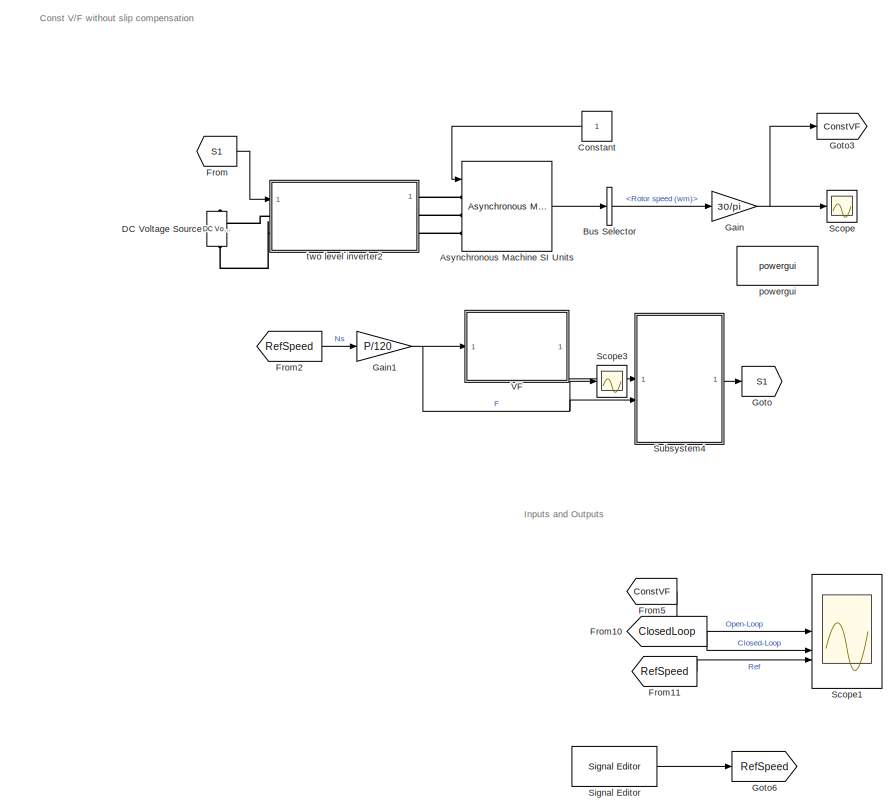
[diagram: root canvas - part 1/2, left side, full height]
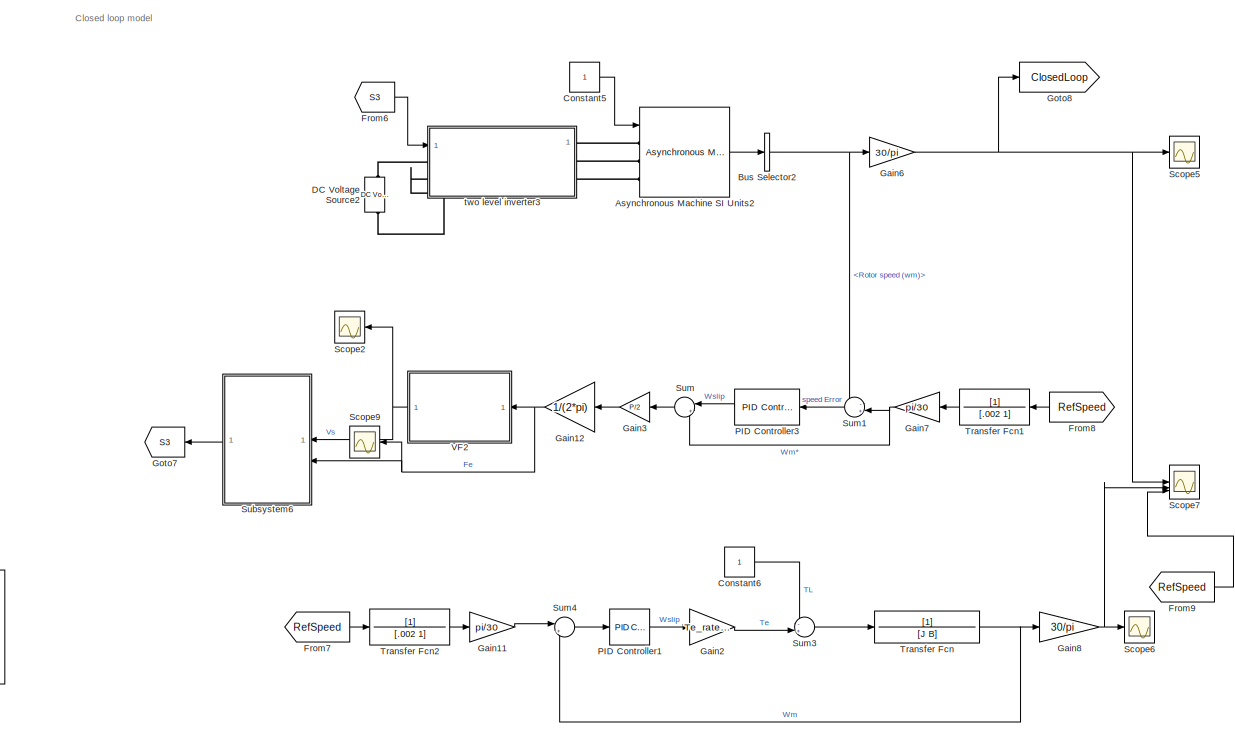
[diagram: root canvas - part 2/2, right side, full height]
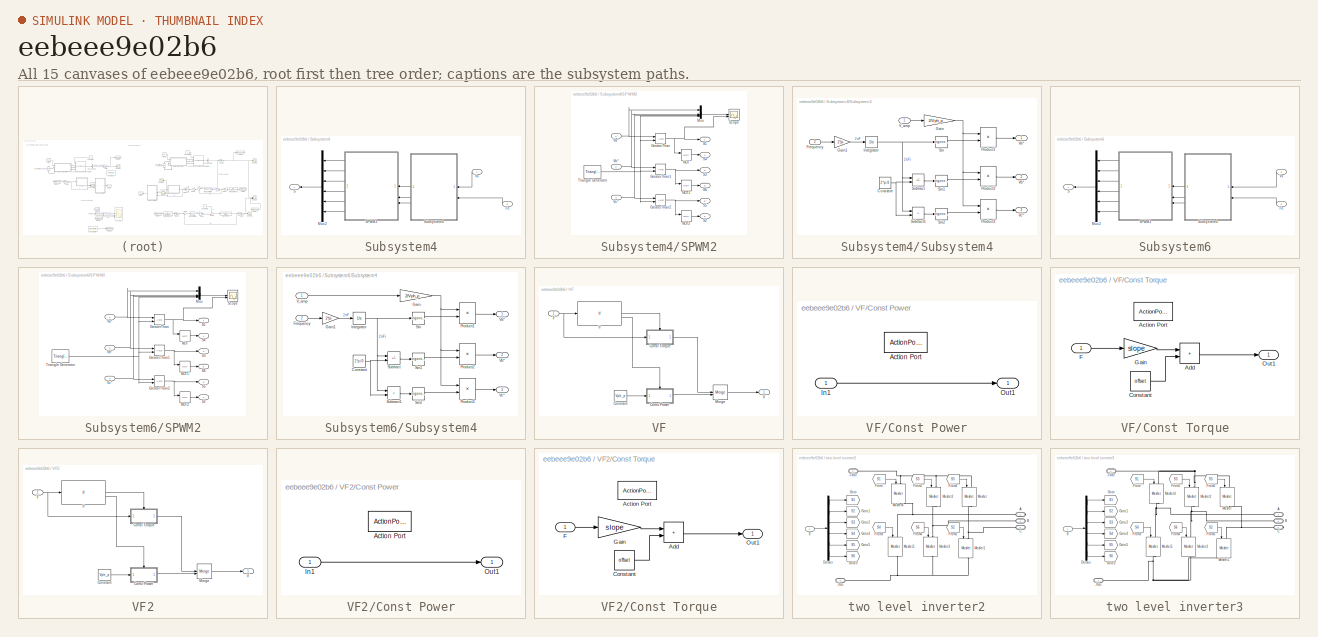
[diagram: thumbnail index - all 15 canvases of the model, root first then tree order]
MODEL slx_eebeee9e02b6
KIND model
CONFIG AbsTol = auto
CONFIG EnableMultiTasking = off
CONFIG FixedStep = auto
CONFIG MaxStep = .00001
CONFIG MinStep = auto
CONFIG RelTol = 1e-3
CONFIG SampleTimeConstraint = Unconstrained
CONFIG SolverName = VariableStepAuto
CONFIG StartTime = 0.0
CONFIG StopTime = 10.0
BLOCK [Reference] Asynchronous Machine SI Units  REF=spsAsynchronousMachineSIUnitsLib/Asynchronous Machine
SI Units
  SourceBlock = spsAsynchronousMachineSIUnitsLib/Asynchronous Machine\nSI Units
  SourceType = Asynchronous Machine
BLOCK [Reference] Asynchronous Machine SI Units2  REF=spsAsynchronousMachineSIUnitsLib/Asynchronous Machine
SI Units
  SourceBlock = spsAsynchronousMachineSIUnitsLib/Asynchronous Machine\nSI Units
  SourceType = Asynchronous Machine
BLOCK [BusSelector] Bus Selector
  OutputSignals = Mechanical.Rotor speed (wm)
BLOCK [BusSelector] Bus Selector2
  OutputSignals = Mechanical.Rotor speed (wm)
BLOCK [Constant] Constant
  NameLocation = top
BLOCK [Constant] Constant5
BLOCK [Constant] Constant6
BLOCK [Reference] DC Voltage Source  REF=spsDCVoltageSourceLib/DC Voltage Source
  LibrarySourceBlock = sps_lib/Sources/DC Voltage Source
  SourceBlock = spsDCVoltageSourceLib/DC Voltage Source
  SourceType = DC Voltage Source
BLOCK [Reference] DC Voltage Source2  REF=spsDCVoltageSourceLib/DC Voltage Source
  LibrarySourceBlock = sps_lib/Sources/DC Voltage Source
  SourceBlock = spsDCVoltageSourceLib/DC Voltage Source
  SourceType = DC Voltage Source
BLOCK [From] From
  GotoTag = S1
BLOCK [From] From10
  GotoTag = ClosedLoop
BLOCK [From] From11
  GotoTag = RefSpeed
BLOCK [From] From2
  GotoTag = RefSpeed
BLOCK [From] From5
  GotoTag = ConstVF
BLOCK [From] From6
  GotoTag = S3
BLOCK [From] From7
  GotoTag = RefSpeed
BLOCK [From] From8
  GotoTag = RefSpeed
  NameLocation = top
BLOCK [From] From9
  GotoTag = RefSpeed
BLOCK [Gain] Gain
  Gain = 30/pi
BLOCK [Gain] Gain1
  Gain = P/120
BLOCK [Gain] Gain11
  Gain = pi/30
BLOCK [Gain] Gain12
  Gain = 1/(2*pi)
  NameLocation = top
BLOCK [Gain] Gain2
  Gain = Te_rated/Wslip_rated
BLOCK [Gain] Gain3
  Gain = P/2
  NameLocation = top
BLOCK [Gain] Gain6
  Gain = 30/pi
BLOCK [Gain] Gain7
  Gain = pi/30
  NameLocation = top
BLOCK [Gain] Gain8
  Gain = 30/pi
BLOCK [Goto] Goto
  GotoTag = S1
BLOCK [Goto] Goto3
  GotoTag = ConstVF
BLOCK [Goto] Goto6
  GotoTag = RefSpeed
BLOCK [Goto] Goto7
  GotoTag = S3
  NameLocation = top
BLOCK [Goto] Goto8
  GotoTag = ClosedLoop
BLOCK [Reference] PID Controller1  REF=slpidlib/PID Controller
  LibrarySourceBlock = simulink/Continuous/PID Controller
  SourceBlock = slpidlib/PID Controller
  SourceType = PID 1dof
BLOCK [Reference] PID Controller3  REF=slpidlib/PID Controller
  LibrarySourceBlock = simulink/Continuous/PID Controller
  NameLocation = top
  SourceBlock = slpidlib/PID Controller
  SourceType = PID 1dof
BLOCK [Scope] Scope
  Floating = off
  NumInputPorts = 1
  ScopeSpecificationString = Simulink.scopes.TimeScopeBlockCfg('CurrentConfiguration', extmgr.ConfigurationSet(extmgr.Configuration('Core','General UI',true),extmgr.Configuration('Core','Source UI',true),extmgr.Configuration('Sources','WiredSimulink',true),extmgr.Configuration('Visuals','Time Domain',true,'SerializedDisplays',{struct('MinYLimReal','-70.06421','MaxYLimReal','611.54364','YLabelReal','','MinYLimMag','0.00000','M...<+1496ch>
BLOCK [Scope] Scope1
  Floating = off
  NumInputPorts = 3
  ScopeSpecificationString = Simulink.scopes.TimeScopeBlockCfg('CurrentConfiguration', extmgr.ConfigurationSet(extmgr.Configuration('Core','General UI',true,'FigureColor',[0 0 0]),extmgr.Configuration('Core','Source UI',true),extmgr.Configuration('Sources','WiredSimulink',true,'DataLoggingVariableName','ScopeData6'),extmgr.Configuration('Visuals','Time Domain',true,'SerializedDisplays',{struct('MinYLimReal','-70.77657','MaxYL...<+1720ch>
BLOCK [Scope] Scope2
  Floating = off
  NameLocation = top
  NumInputPorts = 1
  ScopeSpecificationString = Simulink.scopes.TimeScopeBlockCfg('CurrentConfiguration', extmgr.ConfigurationSet(extmgr.Configuration('Core','General UI',true),extmgr.Configuration('Core','Source UI',true),extmgr.Configuration('Sources','WiredSimulink',true,'DataLoggingVariableName','ScopeData2'),extmgr.Configuration('Visuals','Time Domain',true,'SerializedDisplays',{struct('MinYLimReal','-43.36773','MaxYLimReal','422.13911','Y...<+1415ch>
BLOCK [Scope] Scope3
  Floating = off
  NumInputPorts = 1
  ScopeSpecificationString = Simulink.scopes.TimeScopeBlockCfg('CurrentConfiguration', extmgr.ConfigurationSet(extmgr.Configuration('Core','General UI',true),extmgr.Configuration('Core','Source UI',true),extmgr.Configuration('Sources','WiredSimulink',true,'DataLoggingVariableName','ScopeData1'),extmgr.Configuration('Visuals','Time Domain',true),extmgr.Configuration('Tools','Plot Navigation',true),extmgr.Configuration('Tools',...<+40ch>
BLOCK [Scope] Scope5
  Floating = off
  NumInputPorts = 1
  ScopeSpecificationString = Simulink.scopes.TimeScopeBlockCfg('CurrentConfiguration', extmgr.ConfigurationSet(extmgr.Configuration('Core','General UI',true),extmgr.Configuration('Core','Source UI',true),extmgr.Configuration('Sources','WiredSimulink',true,'DataLoggingVariableName','ScopeData3'),extmgr.Configuration('Visuals','Time Domain',true,'SerializedDisplays',{struct('MinYLimReal','-68.59121','MaxYLimReal','592.36557','Y...<+1536ch>
BLOCK [Scope] Scope6
  Floating = off
  NumInputPorts = 1
  ScopeSpecificationString = Simulink.scopes.TimeScopeBlockCfg('CurrentConfiguration', extmgr.ConfigurationSet(extmgr.Configuration('Core','General UI',true),extmgr.Configuration('Core','Source UI',true),extmgr.Configuration('Sources','WiredSimulink',true,'DataLoggingVariableName','ScopeData4'),extmgr.Configuration('Visuals','Time Domain',true,'SerializedDisplays',{struct('MinYLimReal','-12.99398','MaxYLimReal','116.94578','Y...<+1418ch>
BLOCK [Scope] Scope7
  Floating = off
  NumInputPorts = 3
  ScopeSpecificationString = Simulink.scopes.TimeScopeBlockCfg('CurrentConfiguration', extmgr.ConfigurationSet(extmgr.Configuration('Core','General UI',true),extmgr.Configuration('Core','Source UI',true),extmgr.Configuration('Sources','WiredSimulink',true,'DataLoggingVariableName','ScopeData5'),extmgr.Configuration('Visuals','Time Domain',true,'SerializedDisplays',{struct('MinYLimReal','-68.59121','MaxYLimReal','592.36557','Y...<+1557ch>
BLOCK [Scope] Scope9
  Floating = off
  NameLocation = top
  NumInputPorts = 1
  ScopeSpecificationString = Simulink.scopes.TimeScopeBlockCfg('CurrentConfiguration', extmgr.ConfigurationSet(extmgr.Configuration('Core','General UI',true),extmgr.Configuration('Core','Source UI',true),extmgr.Configuration('Sources','WiredSimulink',true,'DataLoggingVariableName','ScopeData7'),extmgr.Configuration('Visuals','Time Domain',true,'SerializedDisplays',{struct('MinYLimReal','1.04954','MaxYLimReal','1.74026','YLabe...<+1402ch>
BLOCK [Reference] Signal Editor  REF=SignalEditorBlockLib/Signal Editor
  LibrarySourceBlock = simulink/Sources/Signal Editor
  SourceBlock = SignalEditorBlockLib/Signal Editor
  SourceType = SignalEditor
  UserDataPersistent = on
BLOCK [SubSystem] Subsystem4
BLOCK [Inport] Subsystem4/Fe
  Port = 2
BLOCK [Mux] Subsystem4/Mux2
  DisplayOption = bar
  Inputs = 6
  NameLocation = top
BLOCK [Outport] Subsystem4/S
BLOCK [SubSystem] Subsystem4/SPWM2
BLOCK [RelationalOperator] Subsystem4/SPWM2/GreaterThan
  InputSameDT = off
  OutDataTypeStr = boolean
  RndMeth = Simplest
BLOCK [RelationalOperator] Subsystem4/SPWM2/GreaterThan1
  InputSameDT = off
  OutDataTypeStr = boolean
  RndMeth = Simplest
BLOCK [RelationalOperator] Subsystem4/SPWM2/GreaterThan2
  InputSameDT = off
  OutDataTypeStr = boolean
  RndMeth = Simplest
BLOCK [Mux] Subsystem4/SPWM2/Mux
  DisplayOption = bar
BLOCK [Logic] Subsystem4/SPWM2/NOT
  AllPortsSameDT = off
  IconShape = distinctive
  Operator = NOT
  OutDataTypeStr = boolean
BLOCK [Logic] Subsystem4/SPWM2/NOT1
  AllPortsSameDT = off
  IconShape = distinctive
  Operator = NOT
  OutDataTypeStr = boolean
BLOCK [Logic] Subsystem4/SPWM2/NOT2
  AllPortsSameDT = off
  IconShape = distinctive
  Operator = NOT
  OutDataTypeStr = boolean
BLOCK [Outport] Subsystem4/SPWM2/S1
BLOCK [Outport] Subsystem4/SPWM2/S2
  Port = 2
BLOCK [Outport] Subsystem4/SPWM2/S3
  Port = 3
BLOCK [Outport] Subsystem4/SPWM2/S4
  Port = 4
BLOCK [Outport] Subsystem4/SPWM2/S5
  Port = 5
BLOCK [Outport] Subsystem4/SPWM2/S6
  Port = 6
BLOCK [Scope] Subsystem4/SPWM2/Scope
  Floating = off
  NumInputPorts = 2
  ScopeSpecificationString = Simulink.scopes.TimeScopeBlockCfg('CurrentConfiguration', extmgr.ConfigurationSet(extmgr.Configuration('Core','General UI',true),extmgr.Configuration('Core','Source UI',true),extmgr.Configuration('Sources','WiredSimulink',true,'DataLoggingVariableName','ScopeData1'),extmgr.Configuration('Visuals','Time Domain',true,'SerializedDisplays',{struct('MinYLimReal','-1.25','MaxYLimReal','1.25','YLabelReal...<+2092ch>
BLOCK [Reference] Subsystem4/SPWM2/Triangle Generator  REF=spsTriangleGeneratorLib/Triangle
Generator
  LibrarySourceBlock = sps_lib/Sources/Signal Generator Sources/Triangle\nGenerator
  SourceBlock = spsTriangleGeneratorLib/Triangle\nGenerator
  SourceType = Triangle Generator
BLOCK [Inport] Subsystem4/SPWM2/Va*
BLOCK [Inport] Subsystem4/SPWM2/Vb*
  Port = 2
BLOCK [Inport] Subsystem4/SPWM2/Vc*
  Port = 3
BLOCK [SubSystem] Subsystem4/Subsystem4
  NameLocation = top
BLOCK [Constant] Subsystem4/Subsystem4/Constant
  Value = 2*pi/3
BLOCK [Inport] Subsystem4/Subsystem4/Frequency
  Port = 2
BLOCK [Gain] Subsystem4/Subsystem4/Gain
  Gain = 2/Vph_p
BLOCK [Gain] Subsystem4/Subsystem4/Gain1
  Gain = 2*pi
BLOCK [Integrator] Subsystem4/Subsystem4/Integrator
BLOCK [Product] Subsystem4/Subsystem4/Product1
BLOCK [Product] Subsystem4/Subsystem4/Product2
BLOCK [Product] Subsystem4/Subsystem4/Product3
BLOCK [Trigonometry] Subsystem4/Subsystem4/Sin
BLOCK [Trigonometry] Subsystem4/Subsystem4/Sin1
BLOCK [Trigonometry] Subsystem4/Subsystem4/Sin2
BLOCK [Sum] Subsystem4/Subsystem4/Subtract
  IconShape = rectangular
  Inputs = +-
BLOCK [Sum] Subsystem4/Subsystem4/Subtract1
  IconShape = rectangular
BLOCK [Inport] Subsystem4/Subsystem4/V_amp
BLOCK [Outport] Subsystem4/Subsystem4/Va*
BLOCK [Outport] Subsystem4/Subsystem4/Vb*
  Port = 2
BLOCK [Outport] Subsystem4/Subsystem4/Vc*
  Port = 3
BLOCK [Inport] Subsystem4/Vs
BLOCK [SubSystem] Subsystem6
  NameLocation = top
BLOCK [Inport] Subsystem6/Fe
  Port = 2
BLOCK [Mux] Subsystem6/Mux2
  DisplayOption = bar
  Inputs = 6
  NameLocation = top
BLOCK [Outport] Subsystem6/S
BLOCK [SubSystem] Subsystem6/SPWM2
BLOCK [RelationalOperator] Subsystem6/SPWM2/GreaterThan
  InputSameDT = off
  OutDataTypeStr = boolean
  RndMeth = Simplest
BLOCK [RelationalOperator] Subsystem6/SPWM2/GreaterThan1
  InputSameDT = off
  OutDataTypeStr = boolean
  RndMeth = Simplest
BLOCK [RelationalOperator] Subsystem6/SPWM2/GreaterThan2
  InputSameDT = off
  OutDataTypeStr = boolean
  RndMeth = Simplest
BLOCK [Mux] Subsystem6/SPWM2/Mux
  DisplayOption = bar
BLOCK [Logic] Subsystem6/SPWM2/NOT
  AllPortsSameDT = off
  IconShape = distinctive
  Operator = NOT
  OutDataTypeStr = boolean
BLOCK [Logic] Subsystem6/SPWM2/NOT1
  AllPortsSameDT = off
  IconShape = distinctive
  Operator = NOT
  OutDataTypeStr = boolean
BLOCK [Logic] Subsystem6/SPWM2/NOT2
  AllPortsSameDT = off
  IconShape = distinctive
  Operator = NOT
  OutDataTypeStr = boolean
BLOCK [Outport] Subsystem6/SPWM2/S1
BLOCK [Outport] Subsystem6/SPWM2/S2
  Port = 2
BLOCK [Outport] Subsystem6/SPWM2/S3
  Port = 3
BLOCK [Outport] Subsystem6/SPWM2/S4
  Port = 4
BLOCK [Outport] Subsystem6/SPWM2/S5
  Port = 5
BLOCK [Outport] Subsystem6/SPWM2/S6
  Port = 6
BLOCK [Scope] Subsystem6/SPWM2/Scope
  Floating = off
  NumInputPorts = 2
  ScopeSpecificationString = Simulink.scopes.TimeScopeBlockCfg('CurrentConfiguration', extmgr.ConfigurationSet(extmgr.Configuration('Core','General UI',true),extmgr.Configuration('Core','Source UI',true),extmgr.Configuration('Sources','WiredSimulink',true,'DataLoggingVariableName','ScopeData1'),extmgr.Configuration('Visuals','Time Domain',true,'SerializedDisplays',{struct('MinYLimReal','-1.25','MaxYLimReal','1.25','YLabelReal...<+2092ch>
BLOCK [Reference] Subsystem6/SPWM2/Triangle Generator  REF=spsTriangleGeneratorLib/Triangle
Generator
  LibrarySourceBlock = sps_lib/Sources/Signal Generator Sources/Triangle\nGenerator
  SourceBlock = spsTriangleGeneratorLib/Triangle\nGenerator
  SourceType = Triangle Generator
BLOCK [Inport] Subsystem6/SPWM2/Va*
BLOCK [Inport] Subsystem6/SPWM2/Vb*
  Port = 2
BLOCK [Inport] Subsystem6/SPWM2/Vc*
  Port = 3
BLOCK [SubSystem] Subsystem6/Subsystem4
  NameLocation = top
BLOCK [Constant] Subsystem6/Subsystem4/Constant
  Value = 2*pi/3
BLOCK [Inport] Subsystem6/Subsystem4/Frequency
  Port = 2
BLOCK [Gain] Subsystem6/Subsystem4/Gain
  Gain = 2/Vph_p
BLOCK [Gain] Subsystem6/Subsystem4/Gain1
  Gain = 2*pi
BLOCK [Integrator] Subsystem6/Subsystem4/Integrator
BLOCK [Product] Subsystem6/Subsystem4/Product1
BLOCK [Product] Subsystem6/Subsystem4/Product2
BLOCK [Product] Subsystem6/Subsystem4/Product3
BLOCK [Trigonometry] Subsystem6/Subsystem4/Sin
BLOCK [Trigonometry] Subsystem6/Subsystem4/Sin1
BLOCK [Trigonometry] Subsystem6/Subsystem4/Sin2
BLOCK [Sum] Subsystem6/Subsystem4/Subtract
  IconShape = rectangular
  Inputs = +-
BLOCK [Sum] Subsystem6/Subsystem4/Subtract1
  IconShape = rectangular
BLOCK [Inport] Subsystem6/Subsystem4/V_amp
BLOCK [Outport] Subsystem6/Subsystem4/Va*
BLOCK [Outport] Subsystem6/Subsystem4/Vb*
  Port = 2
BLOCK [Outport] Subsystem6/Subsystem4/Vc*
  Port = 3
BLOCK [Inport] Subsystem6/Vs
BLOCK [Sum] Sum
  Inputs = |++
  NameLocation = top
BLOCK [Sum] Sum1
  Inputs = -+|
  NameLocation = top
BLOCK [Sum] Sum3
  Inputs = -+|
BLOCK [Sum] Sum4
  Inputs = |+-
BLOCK [TransferFcn] Transfer Fcn
  Denominator = [J B]
BLOCK [TransferFcn] Transfer Fcn1
  Denominator = [.002 1]
  NameLocation = top
BLOCK [TransferFcn] Transfer Fcn2
  Denominator = [.002 1]
BLOCK [SubSystem] VF
BLOCK [SubSystem] VF/Const Power
  TreatAsAtomicUnit = on
BLOCK [ActionPort] VF/Const Power/Action Port
  ActionPortLabel = else
BLOCK [Inport] VF/Const Power/In1
BLOCK [Outport] VF/Const Power/Out1
BLOCK [SubSystem] VF/Const Torque
  TreatAsAtomicUnit = on
BLOCK [ActionPort] VF/Const Torque/Action Port
  ActionPortLabel = if(u1 <= 50)
BLOCK [Sum] VF/Const Torque/Add
  IconShape = rectangular
BLOCK [Constant] VF/Const Torque/Constant
  Value = offset
BLOCK [Inport] VF/Const Torque/F
BLOCK [Gain] VF/Const Torque/Gain
  Gain = slope
BLOCK [Outport] VF/Const Torque/Out1
BLOCK [Constant] VF/Constant
  Value = Vph_p
BLOCK [Inport] VF/F
BLOCK [If] VF/If
  IfExpression = u1 <= 50
BLOCK [Merge] VF/Merge
BLOCK [Outport] VF/V
BLOCK [SubSystem] VF2
BLOCK [SubSystem] VF2/Const Power
  TreatAsAtomicUnit = on
BLOCK [ActionPort] VF2/Const Power/Action Port
  ActionPortLabel = else
BLOCK [Inport] VF2/Const Power/In1
BLOCK [Outport] VF2/Const Power/Out1
BLOCK [SubSystem] VF2/Const Torque
  TreatAsAtomicUnit = on
BLOCK [ActionPort] VF2/Const Torque/Action Port
  ActionPortLabel = if(u1 <= 50)
BLOCK [Sum] VF2/Const Torque/Add
  IconShape = rectangular
BLOCK [Constant] VF2/Const Torque/Constant
  Value = offset
BLOCK [Inport] VF2/Const Torque/F
BLOCK [Gain] VF2/Const Torque/Gain
  Gain = slope
BLOCK [Outport] VF2/Const Torque/Out1
BLOCK [Constant] VF2/Constant
  Value = Vph_p
BLOCK [Inport] VF2/F
BLOCK [If] VF2/If
  IfExpression = u1 <= 50
BLOCK [Merge] VF2/Merge
BLOCK [Outport] VF2/V
BLOCK [Reference] powergui  REF=sps_lib/powergui
  LibrarySourceBlock = sps_lib/powergui
  Priority = 1
  SourceBlock = sps_lib/powergui
  SourceType = PSB option menu block
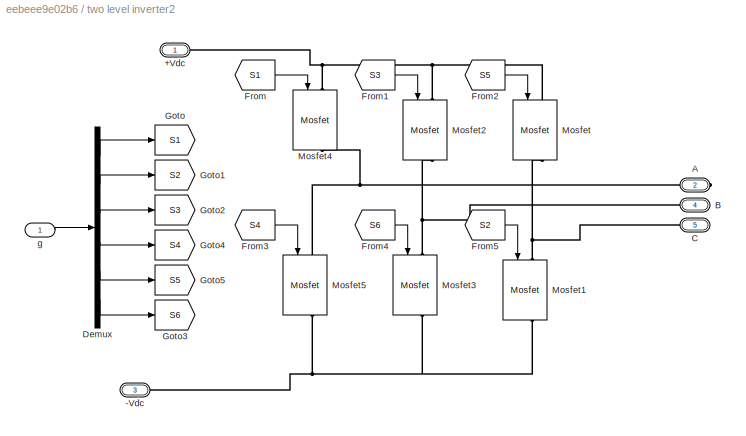
BLOCK [SubSystem] two level inverter2
BLOCK [PMIOPort] two level inverter2/+Vdc
  Side = Left
BLOCK [PMIOPort] two level inverter2/-Vdc
  Port = 3
  Side = Left
BLOCK [PMIOPort] two level inverter2/A
  Port = 2
  Side = Right
BLOCK [PMIOPort] two level inverter2/B
  Port = 4
  Side = Right
BLOCK [PMIOPort] two level inverter2/C
  Port = 5
  Side = Right
BLOCK [Demux] two level inverter2/Demux
  Outputs = 6
BLOCK [From] two level inverter2/From
  GotoTag = S1
BLOCK [From] two level inverter2/From1
  GotoTag = S3
BLOCK [From] two level inverter2/From2
  GotoTag = S5
BLOCK [From] two level inverter2/From3
  GotoTag = S4
BLOCK [From] two level inverter2/From4
  GotoTag = S6
BLOCK [From] two level inverter2/From5
  GotoTag = S2
BLOCK [Goto] two level inverter2/Goto
  GotoTag = S1
BLOCK [Goto] two level inverter2/Goto1
  GotoTag = S2
BLOCK [Goto] two level inverter2/Goto2
  GotoTag = S3
BLOCK [Goto] two level inverter2/Goto3
  GotoTag = S6
BLOCK [Goto] two level inverter2/Goto4
  GotoTag = S4
BLOCK [Goto] two level inverter2/Goto5
  GotoTag = S5
BLOCK [Reference] two level inverter2/Mosfet  REF=spsMosfetLib/Mosfet
  LibrarySourceBlock = sps_lib/Power Electronics/Mosfet
  NameLocation = right
  SourceBlock = spsMosfetLib/Mosfet
  SourceType = Mosfet
BLOCK [Reference] two level inverter2/Mosfet1  REF=spsMosfetLib/Mosfet
  LibrarySourceBlock = sps_lib/Power Electronics/Mosfet
  NameLocation = right
  SourceBlock = spsMosfetLib/Mosfet
  SourceType = Mosfet
BLOCK [Reference] two level inverter2/Mosfet2  REF=spsMosfetLib/Mosfet
  LibrarySourceBlock = sps_lib/Power Electronics/Mosfet
  NameLocation = right
  SourceBlock = spsMosfetLib/Mosfet
  SourceType = Mosfet
BLOCK [Reference] two level inverter2/Mosfet3  REF=spsMosfetLib/Mosfet
  LibrarySourceBlock = sps_lib/Power Electronics/Mosfet
  NameLocation = right
  SourceBlock = spsMosfetLib/Mosfet
  SourceType = Mosfet
BLOCK [Reference] two level inverter2/Mosfet4  REF=spsMosfetLib/Mosfet
  LibrarySourceBlock = sps_lib/Power Electronics/Mosfet
  NameLocation = right
  SourceBlock = spsMosfetLib/Mosfet
  SourceType = Mosfet
BLOCK [Reference] two level inverter2/Mosfet5  REF=spsMosfetLib/Mosfet
  LibrarySourceBlock = sps_lib/Power Electronics/Mosfet
  NameLocation = right
  SourceBlock = spsMosfetLib/Mosfet
  SourceType = Mosfet
BLOCK [Inport] two level inverter2/g
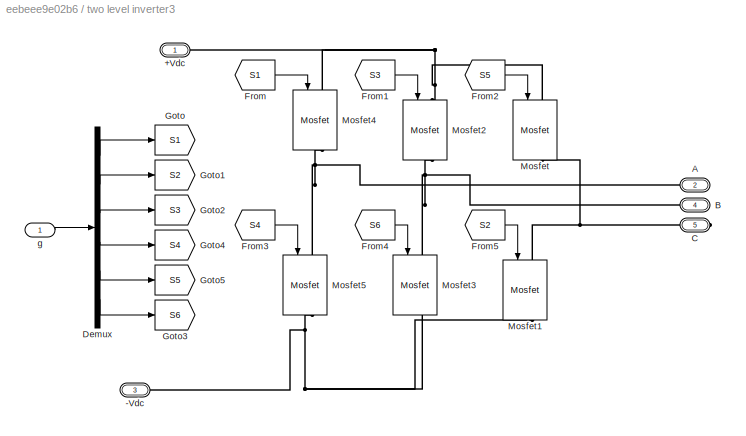
BLOCK [SubSystem] two level inverter3
BLOCK [PMIOPort] two level inverter3/+Vdc
  Side = Left
BLOCK [PMIOPort] two level inverter3/-Vdc
  Port = 3
  Side = Left
BLOCK [PMIOPort] two level inverter3/A
  Port = 2
  Side = Right
BLOCK [PMIOPort] two level inverter3/B
  Port = 4
  Side = Right
BLOCK [PMIOPort] two level inverter3/C
  Port = 5
  Side = Right
BLOCK [Demux] two level inverter3/Demux
  Outputs = 6
BLOCK [From] two level inverter3/From
  GotoTag = S1
BLOCK [From] two level inverter3/From1
  GotoTag = S3
BLOCK [From] two level inverter3/From2
  GotoTag = S5
BLOCK [From] two level inverter3/From3
  GotoTag = S4
BLOCK [From] two level inverter3/From4
  GotoTag = S6
BLOCK [From] two level inverter3/From5
  GotoTag = S2
BLOCK [Goto] two level inverter3/Goto
  GotoTag = S1
BLOCK [Goto] two level inverter3/Goto1
  GotoTag = S2
BLOCK [Goto] two level inverter3/Goto2
  GotoTag = S3
BLOCK [Goto] two level inverter3/Goto3
  GotoTag = S6
BLOCK [Goto] two level inverter3/Goto4
  GotoTag = S4
BLOCK [Goto] two level inverter3/Goto5
  GotoTag = S5
BLOCK [Reference] two level inverter3/Mosfet  REF=spsMosfetLib/Mosfet
  LibrarySourceBlock = sps_lib/Power Electronics/Mosfet
  NameLocation = right
  SourceBlock = spsMosfetLib/Mosfet
  SourceType = Mosfet
BLOCK [Reference] two level inverter3/Mosfet1  REF=spsMosfetLib/Mosfet
  LibrarySourceBlock = sps_lib/Power Electronics/Mosfet
  NameLocation = right
  SourceBlock = spsMosfetLib/Mosfet
  SourceType = Mosfet
BLOCK [Reference] two level inverter3/Mosfet2  REF=spsMosfetLib/Mosfet
  LibrarySourceBlock = sps_lib/Power Electronics/Mosfet
  NameLocation = right
  SourceBlock = spsMosfetLib/Mosfet
  SourceType = Mosfet
BLOCK [Reference] two level inverter3/Mosfet3  REF=spsMosfetLib/Mosfet
  LibrarySourceBlock = sps_lib/Power Electronics/Mosfet
  NameLocation = right
  SourceBlock = spsMosfetLib/Mosfet
  SourceType = Mosfet
BLOCK [Reference] two level inverter3/Mosfet4  REF=spsMosfetLib/Mosfet
  LibrarySourceBlock = sps_lib/Power Electronics/Mosfet
  NameLocation = right
  SourceBlock = spsMosfetLib/Mosfet
  SourceType = Mosfet
BLOCK [Reference] two level inverter3/Mosfet5  REF=spsMosfetLib/Mosfet
  LibrarySourceBlock = sps_lib/Power Electronics/Mosfet
  NameLocation = right
  SourceBlock = spsMosfetLib/Mosfet
  SourceType = Mosfet
BLOCK [Inport] two level inverter3/g
ANNOTATION (root): Closed loop model
ANNOTATION (root): Const V/F without slip compensation
ANNOTATION (root): Inputs and Outputs
LINE Asynchronous Machine SI Units2:1 -> Bus Selector2:1
LINE Asynchronous Machine SI Units:1 -> Bus Selector:1
NET Bus Selector2:1 -> Gain6:1, Sum1:1
LINE Bus Selector:1 -> Gain:1
LINE Constant5:1 -> Asynchronous Machine SI Units2:1
LINE Constant6:1 -> Sum3:1
LINE Constant:1 -> Asynchronous Machine SI Units:1
LINE From10:1 -> Scope1:2
LINE From11:1 -> Scope1:3
LINE From2:1 -> Gain1:1
LINE From5:1 -> Scope1:1
LINE From6:1 -> two level inverter3:1
LINE From7:1 -> Transfer Fcn2:1
LINE From8:1 -> Transfer Fcn1:1
LINE From9:1 -> Scope7:3
LINE From:1 -> two level inverter2:1
LINE Gain11:1 -> Sum4:1
NET Gain12:1 -> Scope9:1, Subsystem6:2, VF2:1
NET Gain1:1 -> Scope3:1, Subsystem4:2, VF:1
LINE Gain2:1 -> Sum3:2
LINE Gain3:1 -> Gain12:1
NET Gain6:1 -> Goto8:1, Scope5:1, Scope7:1
NET Gain7:1 -> Sum1:2, Sum:2
NET Gain8:1 -> Scope6:1, Scope7:2
NET Gain:1 -> Goto3:1, Scope:1
LINE PID Controller1:1 -> Gain2:1
LINE PID Controller3:1 -> Sum:1
LINE Signal Editor:1 -> Goto6:1
LINE Subsystem4/Fe:1 -> Subsystem4/Subsystem4:2
LINE Subsystem4/Mux2:1 -> Subsystem4/S:1
NET Subsystem4/SPWM2/GreaterThan1:1 -> Subsystem4/SPWM2/NOT1:1, Subsystem4/SPWM2/S3:1
NET Subsystem4/SPWM2/GreaterThan2:1 -> Subsystem4/SPWM2/NOT2:1, Subsystem4/SPWM2/S5:1
NET Subsystem4/SPWM2/GreaterThan:1 -> Subsystem4/SPWM2/NOT:1, Subsystem4/SPWM2/S1:1, Subsystem4/SPWM2/Scope:2
LINE Subsystem4/SPWM2/Mux:1 -> Subsystem4/SPWM2/Scope:1
LINE Subsystem4/SPWM2/NOT1:1 -> Subsystem4/SPWM2/S6:1
LINE Subsystem4/SPWM2/NOT2:1 -> Subsystem4/SPWM2/S2:1
LINE Subsystem4/SPWM2/NOT:1 -> Subsystem4/SPWM2/S4:1
NET Subsystem4/SPWM2/Triangle Generator:1 -> Subsystem4/SPWM2/GreaterThan1:2, Subsystem4/SPWM2/GreaterThan2:2, Subsystem4/SPWM2/GreaterThan:2, Subsystem4/SPWM2/Mux:4
NET Subsystem4/SPWM2/Va*:1 -> Subsystem4/SPWM2/GreaterThan:1, Subsystem4/SPWM2/Mux:1
NET Subsystem4/SPWM2/Vb*:1 -> Subsystem4/SPWM2/GreaterThan1:1, Subsystem4/SPWM2/Mux:2
NET Subsystem4/SPWM2/Vc*:1 -> Subsystem4/SPWM2/GreaterThan2:1, Subsystem4/SPWM2/Mux:3
LINE Subsystem4/SPWM2:1 -> Subsystem4/Mux2:1
LINE Subsystem4/SPWM2:2 -> Subsystem4/Mux2:2
LINE Subsystem4/SPWM2:3 -> Subsystem4/Mux2:3
LINE Subsystem4/SPWM2:4 -> Subsystem4/Mux2:4
LINE Subsystem4/SPWM2:5 -> Subsystem4/Mux2:5
LINE Subsystem4/SPWM2:6 -> Subsystem4/Mux2:6
NET Subsystem4/Subsystem4/Constant:1 -> Subsystem4/Subsystem4/Subtract1:2, Subsystem4/Subsystem4/Subtract:2
LINE Subsystem4/Subsystem4/Frequency:1 -> Subsystem4/Subsystem4/Gain1:1
LINE Subsystem4/Subsystem4/Gain1:1 -> Subsystem4/Subsystem4/Integrator:1
NET Subsystem4/Subsystem4/Gain:1 -> Subsystem4/Subsystem4/Product1:1, Subsystem4/Subsystem4/Product2:1, Subsystem4/Subsystem4/Product3:1
NET Subsystem4/Subsystem4/Integrator:1 -> Subsystem4/Subsystem4/Sin:1, Subsystem4/Subsystem4/Subtract1:1, Subsystem4/Subsystem4/Subtract:1
LINE Subsystem4/Subsystem4/Product1:1 -> Subsystem4/Subsystem4/Va*:1
LINE Subsystem4/Subsystem4/Product2:1 -> Subsystem4/Subsystem4/Vb*:1
LINE Subsystem4/Subsystem4/Product3:1 -> Subsystem4/Subsystem4/Vc*:1
LINE Subsystem4/Subsystem4/Sin1:1 -> Subsystem4/Subsystem4/Product2:2
LINE Subsystem4/Subsystem4/Sin2:1 -> Subsystem4/Subsystem4/Product3:2
LINE Subsystem4/Subsystem4/Sin:1 -> Subsystem4/Subsystem4/Product1:2
LINE Subsystem4/Subsystem4/Subtract1:1 -> Subsystem4/Subsystem4/Sin2:1
LINE Subsystem4/Subsystem4/Subtract:1 -> Subsystem4/Subsystem4/Sin1:1
LINE Subsystem4/Subsystem4/V_amp:1 -> Subsystem4/Subsystem4/Gain:1
LINE Subsystem4/Subsystem4:1 -> Subsystem4/SPWM2:1
LINE Subsystem4/Subsystem4:2 -> Subsystem4/SPWM2:2
LINE Subsystem4/Subsystem4:3 -> Subsystem4/SPWM2:3
LINE Subsystem4/Vs:1 -> Subsystem4/Subsystem4:1
LINE Subsystem4:1 -> Goto:1
LINE Subsystem6/Fe:1 -> Subsystem6/Subsystem4:2
LINE Subsystem6/Mux2:1 -> Subsystem6/S:1
NET Subsystem6/SPWM2/GreaterThan1:1 -> Subsystem6/SPWM2/NOT1:1, Subsystem6/SPWM2/S3:1
NET Subsystem6/SPWM2/GreaterThan2:1 -> Subsystem6/SPWM2/NOT2:1, Subsystem6/SPWM2/S5:1
NET Subsystem6/SPWM2/GreaterThan:1 -> Subsystem6/SPWM2/NOT:1, Subsystem6/SPWM2/S1:1, Subsystem6/SPWM2/Scope:2
LINE Subsystem6/SPWM2/Mux:1 -> Subsystem6/SPWM2/Scope:1
LINE Subsystem6/SPWM2/NOT1:1 -> Subsystem6/SPWM2/S6:1
LINE Subsystem6/SPWM2/NOT2:1 -> Subsystem6/SPWM2/S2:1
LINE Subsystem6/SPWM2/NOT:1 -> Subsystem6/SPWM2/S4:1
NET Subsystem6/SPWM2/Triangle Generator:1 -> Subsystem6/SPWM2/GreaterThan1:2, Subsystem6/SPWM2/GreaterThan2:2, Subsystem6/SPWM2/GreaterThan:2, Subsystem6/SPWM2/Mux:4
NET Subsystem6/SPWM2/Va*:1 -> Subsystem6/SPWM2/GreaterThan:1, Subsystem6/SPWM2/Mux:1
NET Subsystem6/SPWM2/Vb*:1 -> Subsystem6/SPWM2/GreaterThan1:1, Subsystem6/SPWM2/Mux:2
NET Subsystem6/SPWM2/Vc*:1 -> Subsystem6/SPWM2/GreaterThan2:1, Subsystem6/SPWM2/Mux:3
LINE Subsystem6/SPWM2:1 -> Subsystem6/Mux2:1
LINE Subsystem6/SPWM2:2 -> Subsystem6/Mux2:2
LINE Subsystem6/SPWM2:3 -> Subsystem6/Mux2:3
LINE Subsystem6/SPWM2:4 -> Subsystem6/Mux2:4
LINE Subsystem6/SPWM2:5 -> Subsystem6/Mux2:5
LINE Subsystem6/SPWM2:6 -> Subsystem6/Mux2:6
NET Subsystem6/Subsystem4/Constant:1 -> Subsystem6/Subsystem4/Subtract1:2, Subsystem6/Subsystem4/Subtract:2
LINE Subsystem6/Subsystem4/Frequency:1 -> Subsystem6/Subsystem4/Gain1:1
LINE Subsystem6/Subsystem4/Gain1:1 -> Subsystem6/Subsystem4/Integrator:1
NET Subsystem6/Subsystem4/Gain:1 -> Subsystem6/Subsystem4/Product1:1, Subsystem6/Subsystem4/Product2:1, Subsystem6/Subsystem4/Product3:1
NET Subsystem6/Subsystem4/Integrator:1 -> Subsystem6/Subsystem4/Sin:1, Subsystem6/Subsystem4/Subtract1:1, Subsystem6/Subsystem4/Subtract:1
LINE Subsystem6/Subsystem4/Product1:1 -> Subsystem6/Subsystem4/Va*:1
LINE Subsystem6/Subsystem4/Product2:1 -> Subsystem6/Subsystem4/Vb*:1
LINE Subsystem6/Subsystem4/Product3:1 -> Subsystem6/Subsystem4/Vc*:1
LINE Subsystem6/Subsystem4/Sin1:1 -> Subsystem6/Subsystem4/Product2:2
LINE Subsystem6/Subsystem4/Sin2:1 -> Subsystem6/Subsystem4/Product3:2
LINE Subsystem6/Subsystem4/Sin:1 -> Subsystem6/Subsystem4/Product1:2
LINE Subsystem6/Subsystem4/Subtract1:1 -> Subsystem6/Subsystem4/Sin2:1
LINE Subsystem6/Subsystem4/Subtract:1 -> Subsystem6/Subsystem4/Sin1:1
LINE Subsystem6/Subsystem4/V_amp:1 -> Subsystem6/Subsystem4/Gain:1
LINE Subsystem6/Subsystem4:1 -> Subsystem6/SPWM2:1
LINE Subsystem6/Subsystem4:2 -> Subsystem6/SPWM2:2
LINE Subsystem6/Subsystem4:3 -> Subsystem6/SPWM2:3
LINE Subsystem6/Vs:1 -> Subsystem6/Subsystem4:1
LINE Subsystem6:1 -> Goto7:1
LINE Sum1:1 -> PID Controller3:1
LINE Sum3:1 -> Transfer Fcn:1
LINE Sum4:1 -> PID Controller1:1
LINE Sum:1 -> Gain3:1
LINE Transfer Fcn1:1 -> Gain7:1
LINE Transfer Fcn2:1 -> Gain11:1
NET Transfer Fcn:1 -> Gain8:1, Sum4:2
LINE VF/Const Power/In1:1 -> VF/Const Power/Out1:1
LINE VF/Const Power:1 -> VF/Merge:2
LINE VF/Const Torque/Add:1 -> VF/Const Torque/Out1:1
LINE VF/Const Torque/Constant:1 -> VF/Const Torque/Add:2
LINE VF/Const Torque/F:1 -> VF/Const Torque/Gain:1
LINE VF/Const Torque/Gain:1 -> VF/Const Torque/Add:1
LINE VF/Const Torque:1 -> VF/Merge:1
LINE VF/Constant:1 -> VF/Const Power:1
NET VF/F:1 -> VF/Const Torque:1, VF/If:1
LINE VF/If:1 -> VF/Const Torque:ifaction
LINE VF/If:2 -> VF/Const Power:ifaction
LINE VF/Merge:1 -> VF/V:1
LINE VF2/Const Power/In1:1 -> VF2/Const Power/Out1:1
LINE VF2/Const Power:1 -> VF2/Merge:2
LINE VF2/Const Torque/Add:1 -> VF2/Const Torque/Out1:1
LINE VF2/Const Torque/Constant:1 -> VF2/Const Torque/Add:2
LINE VF2/Const Torque/F:1 -> VF2/Const Torque/Gain:1
LINE VF2/Const Torque/Gain:1 -> VF2/Const Torque/Add:1
LINE VF2/Const Torque:1 -> VF2/Merge:1
LINE VF2/Constant:1 -> VF2/Const Power:1
NET VF2/F:1 -> VF2/Const Torque:1, VF2/If:1
LINE VF2/If:1 -> VF2/Const Torque:ifaction
LINE VF2/If:2 -> VF2/Const Power:ifaction
LINE VF2/Merge:1 -> VF2/V:1
NET VF2:1 -> Scope2:1, Subsystem6:1
LINE VF:1 -> Subsystem4:1
LINE two level inverter2/Demux:1 -> two level inverter2/Goto:1
LINE two level inverter2/Demux:2 -> two level inverter2/Goto1:1
LINE two level inverter2/Demux:3 -> two level inverter2/Goto2:1
LINE two level inverter2/Demux:4 -> two level inverter2/Goto4:1
LINE two level inverter2/Demux:5 -> two level inverter2/Goto5:1
LINE two level inverter2/Demux:6 -> two level inverter2/Goto3:1
LINE two level inverter2/From1:1 -> two level inverter2/Mosfet2:1
LINE two level inverter2/From2:1 -> two level inverter2/Mosfet:1
LINE two level inverter2/From3:1 -> two level inverter2/Mosfet5:1
LINE two level inverter2/From4:1 -> two level inverter2/Mosfet3:1
LINE two level inverter2/From5:1 -> two level inverter2/Mosfet1:1
LINE two level inverter2/From:1 -> two level inverter2/Mosfet4:1
LINE two level inverter2/g:1 -> two level inverter2/Demux:1
LINE two level inverter3/Demux:1 -> two level inverter3/Goto:1
LINE two level inverter3/Demux:2 -> two level inverter3/Goto1:1
LINE two level inverter3/Demux:3 -> two level inverter3/Goto2:1
LINE two level inverter3/Demux:4 -> two level inverter3/Goto4:1
LINE two level inverter3/Demux:5 -> two level inverter3/Goto5:1
LINE two level inverter3/Demux:6 -> two level inverter3/Goto3:1
LINE two level inverter3/From1:1 -> two level inverter3/Mosfet2:1
LINE two level inverter3/From2:1 -> two level inverter3/Mosfet:1
LINE two level inverter3/From3:1 -> two level inverter3/Mosfet5:1
LINE two level inverter3/From4:1 -> two level inverter3/Mosfet3:1
LINE two level inverter3/From5:1 -> two level inverter3/Mosfet1:1
LINE two level inverter3/From:1 -> two level inverter3/Mosfet4:1
LINE two level inverter3/g:1 -> two level inverter3/Demux:1
PLINE Asynchronous Machine SI Units2:LConn1 -- two level inverter3:RConn1
PLINE Asynchronous Machine SI Units2:LConn2 -- two level inverter3:RConn2
PLINE Asynchronous Machine SI Units2:LConn3 -- two level inverter3:RConn3
PLINE Asynchronous Machine SI Units:LConn1 -- two level inverter2:RConn1
PLINE Asynchronous Machine SI Units:LConn2 -- two level inverter2:RConn2
PLINE Asynchronous Machine SI Units:LConn3 -- two level inverter2:RConn3
PLINE DC Voltage Source2:LConn1 -- two level inverter3:LConn2
PLINE DC Voltage Source2:RConn1 -- two level inverter3:LConn1
PLINE DC Voltage Source:LConn1 -- two level inverter2:LConn2
PLINE DC Voltage Source:RConn1 -- two level inverter2:LConn1
PNET net1: two level inverter2/+Vdc:RConn1 -- two level inverter2/Mosfet2:LConn1 -- two level inverter2/Mosfet4:LConn1 -- two level inverter2/Mosfet:LConn1
PNET net2: two level inverter2/-Vdc:RConn1 -- two level inverter2/Mosfet1:RConn1 -- two level inverter2/Mosfet3:RConn1 -- two level inverter2/Mosfet5:RConn1
PNET net3: two level inverter2/A:RConn1 -- two level inverter2/Mosfet4:RConn1 -- two level inverter2/Mosfet5:LConn1
PNET net4: two level inverter2/B:RConn1 -- two level inverter2/Mosfet2:RConn1 -- two level inverter2/Mosfet3:LConn1
PNET net5: two level inverter2/C:RConn1 -- two level inverter2/Mosfet1:LConn1 -- two level inverter2/Mosfet:RConn1
PNET net6: two level inverter3/+Vdc:RConn1 -- two level inverter3/Mosfet2:LConn1 -- two level inverter3/Mosfet4:LConn1 -- two level inverter3/Mosfet:LConn1
PNET net7: two level inverter3/-Vdc:RConn1 -- two level inverter3/Mosfet1:RConn1 -- two level inverter3/Mosfet3:RConn1 -- two level inverter3/Mosfet5:RConn1
PNET net8: two level inverter3/A:RConn1 -- two level inverter3/Mosfet4:RConn1 -- two level inverter3/Mosfet5:LConn1
PNET net9: two level inverter3/B:RConn1 -- two level inverter3/Mosfet2:RConn1 -- two level inverter3/Mosfet3:LConn1
PNET net10: two level inverter3/C:RConn1 -- two level inverter3/Mosfet1:LConn1 -- two level inverter3/Mosfet:RConn1
note: NET lines group one-source signal fan-out (src -> all destinations, sorted); 1:1 wires keep LINE; PNET lines group multi-terminal physical nets as a canonical sorted terminal list (undirected conserving connections); 2-terminal nets keep the pairwise PLINE form
